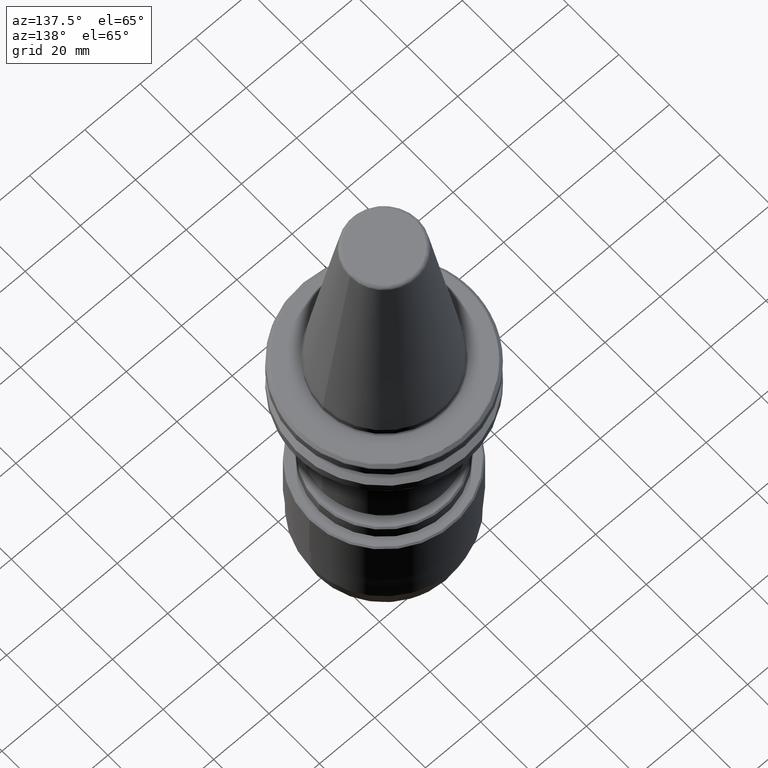
[diagram: clean part render]
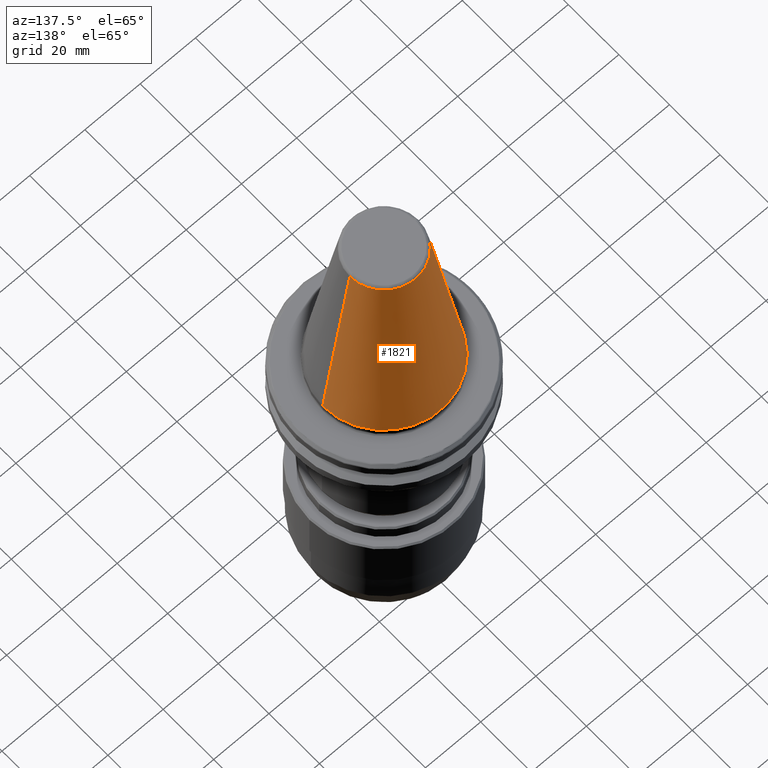
[diagram: same view with one face highlighted and labeled with its STEP entity id]
A machine part, auxiliary view. The second image highlights one B-rep face of the part: STEP entity #1821.
In plain terms, the highlighted conical surface has half-angle 8.297 deg.
Its self-contained STEP definition (entity closure, byte-faithful):
#127 = DIRECTION ( 'NONE',  ( 0.0000000000000000000, 0.0000000000000000000, -1.000000000000000000 ) ) ;
#173 = LINE ( 'NONE', #2207, #2239 ) ;
#288 = CARTESIAN_POINT ( 'NONE',  ( 12.37469537611110800, 2.118620309691396900E-015, 67.54430822726729400 ) ) ;
#359 = DIRECTION ( 'NONE',  ( -1.000000000000000000, 0.0000000000000000000, 0.0000000000000000000 ) ) ;
#368 = DIRECTION ( 'NONE',  ( 0.0000000000000000000, 0.0000000000000000000, -1.000000000000000000 ) ) ;
#403 = CARTESIAN_POINT ( 'NONE',  ( 0.0000000000000000000, 0.0000000000000000000, 67.54430822726729400 ) ) ;
#422 = DIRECTION ( 'NONE',  ( -1.000000000000000000, 0.0000000000000000000, 6.244223985518314900E-016 ) ) ;
#513 = ORIENTED_EDGE ( 'NONE', *, *, #3029, .F. ) ;
#562 = EDGE_CURVE ( 'NONE', #2809, #913, #2298, .T. ) ;
#715 = AXIS2_PLACEMENT_3D ( 'NONE', #2477, #2734, #422 ) ;
#913 = VERTEX_POINT ( 'NONE', #2111 ) ;
#917 = VECTOR ( 'NONE', #2542, 1000.000000000000000 ) ;
#1339 = EDGE_CURVE ( 'NONE', #2072, #2741, #2138, .T. ) ;
#1399 = AXIS2_PLACEMENT_3D ( 'NONE', #403, #368, #359 ) ;
#1525 = CONICAL_SURFACE ( 'NONE', #2123, 22.22500000000000100, 0.1448138465474190500 ) ;
#1573 = CARTESIAN_POINT ( 'NONE',  ( -12.37469537611110800, 0.0000000000000000000, 67.54430822726729400 ) ) ;
#1614 = CARTESIAN_POINT ( 'NONE',  ( 22.22500000000000500, 0.0000000000000000000, 0.0000000000000000000 ) ) ;
#1697 = CARTESIAN_POINT ( 'NONE',  ( 0.0000000000000000000, 0.0000000000000000000, 0.0000000000000000000 ) ) ;
#1767 = ORIENTED_EDGE ( 'NONE', *, *, #562, .T. ) ;
#1821 = ADVANCED_FACE ( 'NONE', ( #2273 ), #1525, .T. ) ;
#2039 = CARTESIAN_POINT ( 'NONE',  ( 22.22500000000000100, 2.721777511104992800E-015, 0.0000000000000000000 ) ) ;
#2070 = ORIENTED_EDGE ( 'NONE', *, *, #1339, .T. ) ;
#2072 = VERTEX_POINT ( 'NONE', #1573 ) ;
#2111 = CARTESIAN_POINT ( 'NONE',  ( -22.22500000000000500, 2.721777511104993200E-015, 0.0000000000000000000 ) ) ;
#2123 = AXIS2_PLACEMENT_3D ( 'NONE', #1697, #127, #2700 ) ;
#2138 = CIRCLE ( 'NONE', #1399, 12.37469537611110800 ) ;
#2207 = CARTESIAN_POINT ( 'NONE',  ( -22.22500000000000100, 0.0000000000000000000, 0.0000000000000000000 ) ) ;
#2239 = VECTOR ( 'NONE', #2454, 1000.000000000000000 ) ;
#2270 = LINE ( 'NONE', #2039, #917 ) ;
#2273 = FACE_OUTER_BOUND ( 'NONE', #3247, .T. ) ;
#2298 = CIRCLE ( 'NONE', #715, 22.22500000000000100 ) ;
#2454 = DIRECTION ( 'NONE',  ( -0.1443082272673070500, 0.0000000000000000000, -0.9895327864921743500 ) ) ;
#2477 = CARTESIAN_POINT ( 'NONE',  ( 0.0000000000000000000, 0.0000000000000000000, 0.0000000000000000000 ) ) ;
#2529 = EDGE_CURVE ( 'NONE', #2741, #2809, #2270, .T. ) ;
#2542 = DIRECTION ( 'NONE',  ( 0.1443082272673070500, 1.767266086135363700E-017, -0.9895327864921743500 ) ) ;
#2700 = DIRECTION ( 'NONE',  ( -1.000000000000000000, 0.0000000000000000000, 0.0000000000000000000 ) ) ;
#2734 = DIRECTION ( 'NONE',  ( -0.0000000000000000000, -0.0000000000000000000, 1.000000000000000000 ) ) ;
#2741 = VERTEX_POINT ( 'NONE', #288 ) ;
#2809 = VERTEX_POINT ( 'NONE', #1614 ) ;
#3029 = EDGE_CURVE ( 'NONE', #2072, #913, #173, .T. ) ;
#3196 = ORIENTED_EDGE ( 'NONE', *, *, #2529, .T. ) ;
#3247 = EDGE_LOOP ( 'NONE', ( #2070, #3196, #1767, #513 ) ) ;